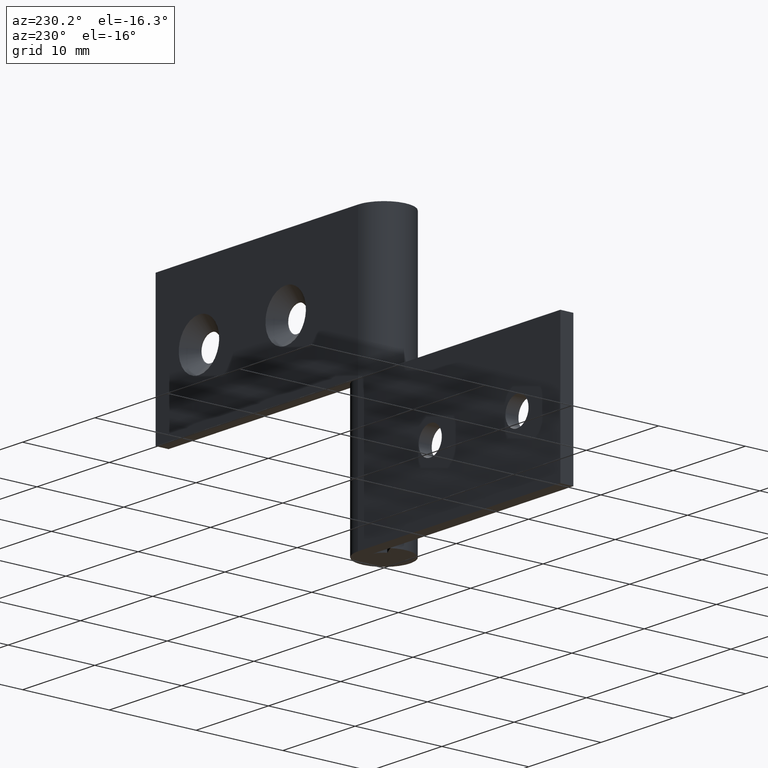
[diagram: clean part render]
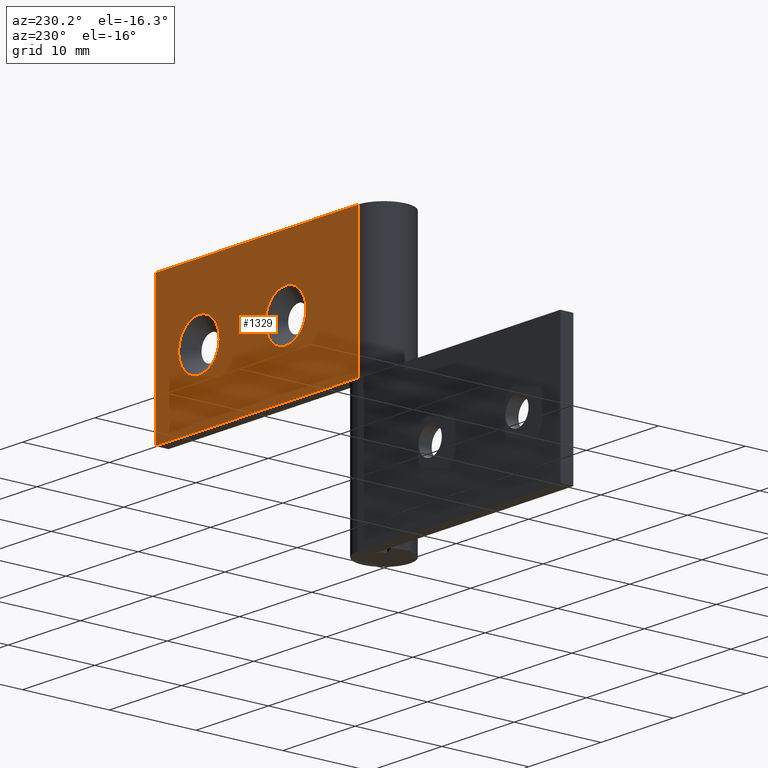
[diagram: same view with one face highlighted and labeled with its STEP entity id]
A machine part, auxiliary view. The second image highlights one B-rep face of the part: STEP entity #1329.
In plain terms, the highlighted face is a freeform B-spline surface patch.
Its self-contained STEP definition (entity closure, byte-faithful):
#661=CARTESIAN_POINT('',(24.780426685656369,3.000000000008826,24.330495858516461));
#662=VERTEX_POINT('',#661);
#668=CARTESIAN_POINT('',(22.0,3.0,21.199999988079071));
#669=VERTEX_POINT('',#668);
#670=CARTESIAN_POINT('',(24.780426685656376,3.000000000008826,24.330495858516461));
#671=CARTESIAN_POINT('',(24.800000011920933,3.0,24.165827535801512));
#672=CARTESIAN_POINT('',(24.800000011920929,3.0,24.0));
#673=CARTESIAN_POINT('',(24.800000011920929,3.0,21.199999988079075));
#674=CARTESIAN_POINT('',(22.0,3.0,21.199999988079071));
#682=(BOUNDED_CURVE()B_SPLINE_CURVE(2,(#670,#671,#672,#673,#674),.UNSPECIFIED.,.F.,.U.)B_SPLINE_CURVE_WITH_KNOTS((3,2,3),(0.229562473507205,0.250000000000000,0.500000000000000),.UNSPECIFIED.)CURVE()GEOMETRIC_REPRESENTATION_ITEM()RATIONAL_B_SPLINE_CURVE((0.956026754171345,0.976055948323761,1.0,0.707106781186548,1.0))REPRESENTATION_ITEM(''));
#683=EDGE_CURVE('',#662,#669,#682,.T.);
#685=CARTESIAN_POINT('',(19.205222552498110,3.000000000040750,23.829064088266289));
#686=VERTEX_POINT('',#685);
#687=CARTESIAN_POINT('',(22.0,3.0,21.199999988079071));
#688=CARTESIAN_POINT('',(19.366023002027593,3.000000000000000,21.199999988079071));
#689=CARTESIAN_POINT('',(19.205222552498103,3.000000000040750,23.829064088266293));
#697=(BOUNDED_CURVE()B_SPLINE_CURVE(2,(#687,#688,#689),.UNSPECIFIED.,.F.,.U.)B_SPLINE_CURVE_WITH_KNOTS((3,3),(0.500000000000000,0.739332962204200),.UNSPECIFIED.)CURVE()GEOMETRIC_REPRESENTATION_ITEM()RATIONAL_B_SPLINE_CURVE((1.0,0.719603993327415,0.976072041592256))REPRESENTATION_ITEM(''));
#698=EDGE_CURVE('',#669,#686,#697,.T.);
#731=CARTESIAN_POINT('',(22.0,3.0,26.800000011920929));
#732=VERTEX_POINT('',#731);
#733=CARTESIAN_POINT('',(19.205222552498110,3.000000000040750,23.829064088266289));
#734=CARTESIAN_POINT('',(19.199999988079064,3.000000000000000,23.914452262093015));
#735=CARTESIAN_POINT('',(19.199999988079071,3.0,24.0));
#736=CARTESIAN_POINT('',(19.199999988079064,3.0,26.800000011920936));
#737=CARTESIAN_POINT('',(22.0,3.0,26.800000011920929));
#745=(BOUNDED_CURVE()B_SPLINE_CURVE(2,(#733,#734,#735,#736,#737),.UNSPECIFIED.,.F.,.U.)B_SPLINE_CURVE_WITH_KNOTS((3,2,3),(0.739332962204201,0.750000000000000,1.0),.UNSPECIFIED.)CURVE()GEOMETRIC_REPRESENTATION_ITEM()RATIONAL_B_SPLINE_CURVE((0.976072041592258,0.987502787859134,1.0,0.707106781186548,1.0))REPRESENTATION_ITEM(''));
#746=EDGE_CURVE('',#686,#732,#745,.T.);
#748=CARTESIAN_POINT('',(22.0,3.0,26.800000011920929));
#749=CARTESIAN_POINT('',(24.486888683126637,3.0,26.800000011920936));
#750=CARTESIAN_POINT('',(24.780426685656376,3.000000000008826,24.330495858516461));
#758=(BOUNDED_CURVE()B_SPLINE_CURVE(2,(#748,#749,#750),.UNSPECIFIED.,.F.,.U.)B_SPLINE_CURVE_WITH_KNOTS((3,3),(0.0,0.229562473507205),.UNSPECIFIED.)CURVE()GEOMETRIC_REPRESENTATION_ITEM()RATIONAL_B_SPLINE_CURVE((1.0,0.731050832862787,0.956026754171345))REPRESENTATION_ITEM(''));
#759=EDGE_CURVE('',#732,#662,#758,.T.);
#989=CARTESIAN_POINT('',(12.780426685656380,3.000000000008827,24.330495858516461));
#990=VERTEX_POINT('',#989);
#996=CARTESIAN_POINT('',(10.0,3.0,21.199999988079071));
#997=VERTEX_POINT('',#996);
#998=CARTESIAN_POINT('',(12.780426685656373,3.000000000008827,24.330495858516453));
#999=CARTESIAN_POINT('',(12.800000011920931,3.0,24.165827535801505));
#1000=CARTESIAN_POINT('',(12.800000011920931,3.0,24.0));
#1001=CARTESIAN_POINT('',(12.800000011920933,3.0,21.199999988079075));
#1002=CARTESIAN_POINT('',(10.0,3.0,21.199999988079071));
#1010=(BOUNDED_CURVE()B_SPLINE_CURVE(2,(#998,#999,#1000,#1001,#1002),.UNSPECIFIED.,.F.,.U.)B_SPLINE_CURVE_WITH_KNOTS((3,2,3),(0.229562473507206,0.250000000000000,0.500000000000000),.UNSPECIFIED.)CURVE()GEOMETRIC_REPRESENTATION_ITEM()RATIONAL_B_SPLINE_CURVE((0.956026754171346,0.976055948323761,1.0,0.707106781186548,1.0))REPRESENTATION_ITEM(''));
#1011=EDGE_CURVE('',#990,#997,#1010,.T.);
#1013=CARTESIAN_POINT('',(7.205222552498113,3.000000000040748,23.829064088266289));
#1014=VERTEX_POINT('',#1013);
#1015=CARTESIAN_POINT('',(10.0,3.0,21.199999988079071));
#1016=CARTESIAN_POINT('',(7.366023002027557,3.0,21.199999988079075));
#1017=CARTESIAN_POINT('',(7.205222552498113,3.000000000040749,23.829064088266289));
#1025=(BOUNDED_CURVE()B_SPLINE_CURVE(2,(#1015,#1016,#1017),.UNSPECIFIED.,.F.,.U.)B_SPLINE_CURVE_WITH_KNOTS((3,3),(0.500000000000000,0.739332962204202),.UNSPECIFIED.)CURVE()GEOMETRIC_REPRESENTATION_ITEM()RATIONAL_B_SPLINE_CURVE((1.0,0.719603993327412,0.976072041592261))REPRESENTATION_ITEM(''));
#1026=EDGE_CURVE('',#997,#1014,#1025,.T.);
#1059=CARTESIAN_POINT('',(10.0,3.0,26.800000011920929));
#1060=VERTEX_POINT('',#1059);
#1061=CARTESIAN_POINT('',(7.205222552498114,3.000000000040748,23.829064088266293));
#1062=CARTESIAN_POINT('',(7.199999988079071,2.999999999999999,23.914452262093015));
#1063=CARTESIAN_POINT('',(7.199999988079070,3.0,24.0));
#1064=CARTESIAN_POINT('',(7.199999988079069,3.0,26.800000011920936));
#1065=CARTESIAN_POINT('',(10.0,3.0,26.800000011920929));
#1073=(BOUNDED_CURVE()B_SPLINE_CURVE(2,(#1061,#1062,#1063,#1064,#1065),.UNSPECIFIED.,.F.,.U.)B_SPLINE_CURVE_WITH_KNOTS((3,2,3),(0.739332962204201,0.750000000000000,1.0),.UNSPECIFIED.)CURVE()GEOMETRIC_REPRESENTATION_ITEM()RATIONAL_B_SPLINE_CURVE((0.976072041592259,0.987502787859135,1.0,0.707106781186548,1.0))REPRESENTATION_ITEM(''));
#1074=EDGE_CURVE('',#1014,#1060,#1073,.T.);
#1076=CARTESIAN_POINT('',(10.0,3.0,26.800000011920929));
#1077=CARTESIAN_POINT('',(12.486888683126654,3.000000000000000,26.800000011920929));
#1078=CARTESIAN_POINT('',(12.780426685656373,3.000000000008827,24.330495858516453));
#1086=(BOUNDED_CURVE()B_SPLINE_CURVE(2,(#1076,#1077,#1078),.UNSPECIFIED.,.F.,.U.)B_SPLINE_CURVE_WITH_KNOTS((3,3),(0.0,0.229562473507206),.UNSPECIFIED.)CURVE()GEOMETRIC_REPRESENTATION_ITEM()RATIONAL_B_SPLINE_CURVE((1.0,0.731050832862786,0.956026754171346))REPRESENTATION_ITEM(''));
#1087=EDGE_CURVE('',#1060,#990,#1086,.T.);
#1128=CARTESIAN_POINT('',(28.000008000000001,3.0,32.0));
#1129=VERTEX_POINT('',#1128);
#1135=CARTESIAN_POINT('',(3.552714E-015,3.0,32.0));
#1136=VERTEX_POINT('',#1135);
#1137=CARTESIAN_POINT('',(28.000008000000001,3.0,32.0));
#1138=CARTESIAN_POINT('',(3.552714E-015,3.0,32.0));
#1139=QUASI_UNIFORM_CURVE('',1,(#1137,#1138),.UNSPECIFIED.,.F.,.U.);
#1140=EDGE_CURVE('',#1129,#1136,#1139,.T.);
#1206=CARTESIAN_POINT('',(3.552714E-015,3.0,16.0));
#1207=VERTEX_POINT('',#1206);
#1227=CARTESIAN_POINT('',(28.000008000000001,3.0,16.0));
#1228=VERTEX_POINT('',#1227);
#1229=CARTESIAN_POINT('',(28.000008000000001,3.0,16.0));
#1230=CARTESIAN_POINT('',(3.552714E-015,3.0,16.0));
#1231=QUASI_UNIFORM_CURVE('',1,(#1229,#1230),.UNSPECIFIED.,.F.,.U.);
#1232=EDGE_CURVE('',#1228,#1207,#1231,.T.);
#1292=CARTESIAN_POINT('',(3.552714E-015,3.0,16.0));
#1293=CARTESIAN_POINT('',(3.552714E-015,3.0,32.0));
#1294=QUASI_UNIFORM_CURVE('',1,(#1292,#1293),.UNSPECIFIED.,.F.,.U.);
#1295=EDGE_CURVE('',#1207,#1136,#1294,.T.);
#1302=CARTESIAN_POINT('',(-1.398600245294851,3.0,15.200800031011100));
#1303=CARTESIAN_POINT('',(-1.398600245294851,3.0,32.799200398142339));
#1304=CARTESIAN_POINT('',(29.398606993596960,3.0,15.200800031011100));
#1305=CARTESIAN_POINT('',(29.398606993596960,3.0,32.799200398142339));
#1306=B_SPLINE_SURFACE_WITH_KNOTS('',1,1,((#1302,#1304),(#1303,#1305)),.UNSPECIFIED.,.F.,.F.,.U.,(2,2),(2,2),(0.0,17.598400367131230),(0.0,30.797207238891819),.UNSPECIFIED.);
#1307=ORIENTED_EDGE('',*,*,#1140,.F.);
#1308=CARTESIAN_POINT('',(28.000008000000001,3.0,16.0));
#1309=CARTESIAN_POINT('',(28.000008000000001,3.0,32.0));
#1310=QUASI_UNIFORM_CURVE('',1,(#1308,#1309),.UNSPECIFIED.,.F.,.U.);
#1311=EDGE_CURVE('',#1228,#1129,#1310,.T.);
#1312=ORIENTED_EDGE('',*,*,#1311,.F.);
#1313=ORIENTED_EDGE('',*,*,#1232,.T.);
#1314=ORIENTED_EDGE('',*,*,#1295,.T.);
#1315=EDGE_LOOP('',(#1307,#1312,#1313,#1314));
#1316=FACE_OUTER_BOUND('',#1315,.T.);
#1317=ORIENTED_EDGE('',*,*,#1026,.F.);
#1318=ORIENTED_EDGE('',*,*,#1011,.F.);
#1319=ORIENTED_EDGE('',*,*,#1087,.F.);
#1320=ORIENTED_EDGE('',*,*,#1074,.F.);
#1321=EDGE_LOOP('',(#1317,#1318,#1319,#1320));
#1322=FACE_BOUND('',#1321,.T.);
#1323=ORIENTED_EDGE('',*,*,#698,.F.);
#1324=ORIENTED_EDGE('',*,*,#683,.F.);
#1325=ORIENTED_EDGE('',*,*,#759,.F.);
#1326=ORIENTED_EDGE('',*,*,#746,.F.);
#1327=EDGE_LOOP('',(#1323,#1324,#1325,#1326));
#1328=FACE_BOUND('',#1327,.T.);
#1329=ADVANCED_FACE('',(#1316,#1322,#1328),#1306,.T.);